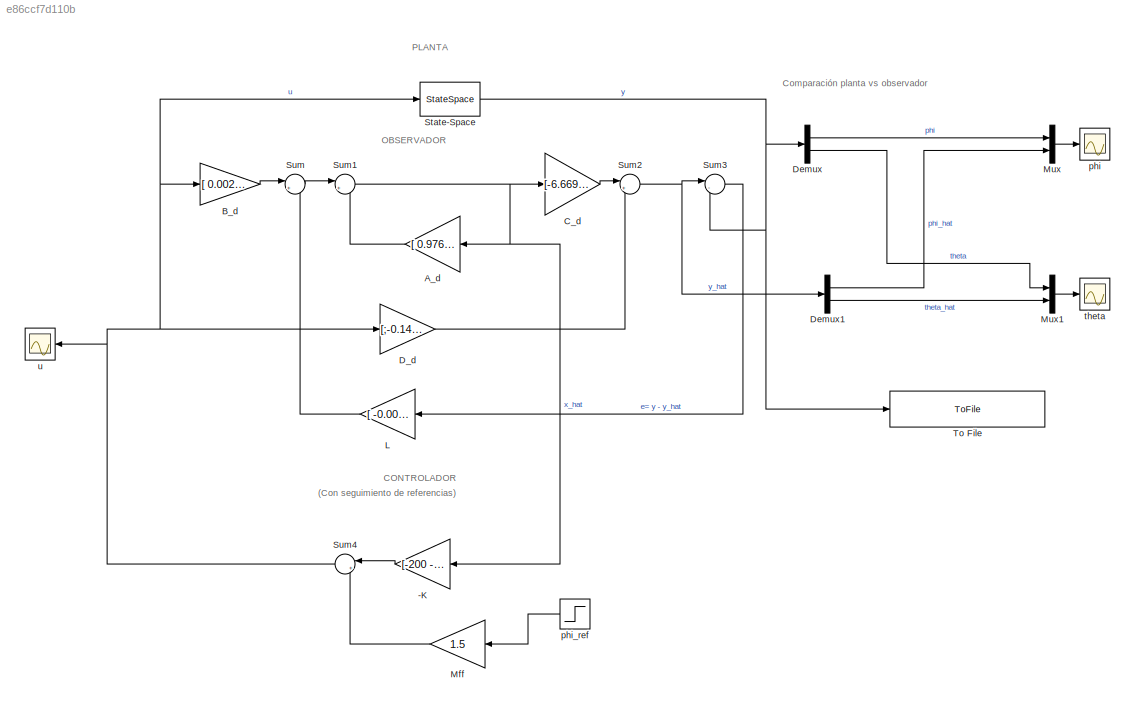
MODEL slx_e86ccf7d110b
KIND model
CONFIG AbsTol = auto
CONFIG EnableMultiTasking = off
CONFIG FixedStep = 0.02
CONFIG MaxStep = auto
CONFIG MinStep = auto
CONFIG RelTol = 1e-3
CONFIG SampleTimeConstraint = Unconstrained
CONFIG SolverName = ode1
CONFIG StartTime = 0.0
CONFIG StopTime = 10.08
BLOCK [Gain] -K
  Gain = [-200 -90 -12 -6]
  Multiplication = Matrix(K*u)
  NameLocation = top
BLOCK [Gain] A_d
  Gain = [ 0.9769     -0.152  -0.001215   -0.02181;   0.1523     0.9838   -0.02593   0.008431;   -0.02706   -0.05485        0.8    -0.0522;   0.004625    0.03261     0.3389     0.9926]
  Multiplication = Matrix(K*u)
  NameLocation = top
BLOCK [Gain] B_d
  Gain = [ 0.002765\n; -0.00137\n; 0.0122; -0.002472\n]
BLOCK [Gain] C_d
  Gain = [-6.669  -4.565  -19.02   6.812; -341.3   53.95  -2.577   4.176]
  Multiplication = Matrix(K*u)
BLOCK [Gain] D_d
  Gain = [;-0.1494\n;-0.5163]
  Multiplication = Matrix(K*u)
BLOCK [Demux] Demux
  Outputs = 2
  Ports = [1, 2]
BLOCK [Demux] Demux1
  Outputs = 2
  Ports = [1, 2]
BLOCK [Gain] L
  Gain = [ -0.0036  -0.0027;\n      -0.0412   0.0159;\n       0.0391  -0.0049;\n       0.3137  -0.0055 ]
  Multiplication = Matrix(K*u)
  NameLocation = top
BLOCK [Gain] Mff
  Gain = 1.5
  Multiplication = Matrix(K*u)
  NameLocation = top
BLOCK [Mux] Mux
  DisplayOption = bar
  Inputs = 2
  Ports = [2, 1]
BLOCK [Mux] Mux1
  DisplayOption = bar
  Inputs = 2
  Ports = [2, 1]
BLOCK [StateSpace] State-Space
  A = [  -0.5739    -7.69  0.02236   -1.068;    7.703  -0.2749   -1.527   0.4686;  -1.268   -3.108   -10.61   -2.898\n;    0.323    2.188    18.84   0.1148]
  B = [0.1323;  -0.06944;  0.6708;   -0.23731]
  C = [-6.619   -5.83  -22.39   6.203;  -347.5   27.68  -2.737  0.2003]
  D = [0; 0]
  InitialCondition = 0
  ParameterTunability = Unconstrained
  Ports = [1, 1]
BLOCK [Sum] Sum
  Inputs = |++
  Ports = [2, 1]
BLOCK [Sum] Sum1
  Inputs = |++
  Ports = [2, 1]
BLOCK [Sum] Sum2
  Inputs = |++
  Ports = [2, 1]
BLOCK [Sum] Sum3
  Inputs = |-+
  Ports = [2, 1]
BLOCK [Sum] Sum4
  Inputs = |++
  NameLocation = top
  Ports = [2, 1]
BLOCK [ToFile] To File
  Filename = simulacion_realimentacion_con_ref.mat
  MatrixName = datos_realimentacion_con_ref
  Ports = [1]
  SaveFormat = Timeseries
BLOCK [Scope] phi
  Floating = off
  NumInputPorts = 1
  Ports = [1]
  ScopeSpecificationString = Simulink.scopes.TimeScopeBlockCfg('CurrentConfiguration', extmgr.ConfigurationSet(extmgr.Configuration('Core','General UI',true),extmgr.Configuration('Core','Source UI',true),extmgr.Configuration('Sources','WiredSimulink',true),extmgr.Configuration('Visuals','Time Domain',true,'SerializedDisplays',{struct('MinYLimReal','-17.779','MaxYLimReal','49.23668','YLabelReal','','MinYLimMag','0.00000','MaxY...<+1414ch>
BLOCK [Step] phi_ref
  After = 30
  NameLocation = top
  SampleTime = 0.02
  Time = 0.1
BLOCK [Scope] theta
  Floating = off
  NumInputPorts = 1
  Ports = [1]
  ScopeSpecificationString = Simulink.scopes.TimeScopeBlockCfg('CurrentConfiguration', extmgr.ConfigurationSet(extmgr.Configuration('Core','General UI',true),extmgr.Configuration('Core','Source UI',true),extmgr.Configuration('Sources','WiredSimulink',true,'DataLoggingVariableName','ScopeData1'),extmgr.Configuration('Visuals','Time Domain',true,'SerializedDisplays',{struct('MinYLimReal','-161.9652','MaxYLimReal','118.36426','Y...<+1417ch>
BLOCK [Scope] u
  Floating = off
  NameLocation = top
  NumInputPorts = 1
  Ports = [1]
  ScopeSpecificationString = Simulink.scopes.TimeScopeBlockCfg('CurrentConfiguration', extmgr.ConfigurationSet(extmgr.Configuration('Core','General UI',true),extmgr.Configuration('Core','Source UI',true),extmgr.Configuration('Sources','WiredSimulink',true,'DataLoggingVariableName','ScopeData1'),extmgr.Configuration('Visuals','Time Domain',true,'SerializedDisplays',{struct('MinYLimReal','-2.50553','MaxYLimReal','22.54981','YLa...<+1395ch>
ANNOTATION (root): (Con seguimiento de referencias)
ANNOTATION (root): CONTROLADOR
ANNOTATION (root): Comparación planta vs observador
ANNOTATION (root): OBSERVADOR
ANNOTATION (root): PLANTA
LINE -K:1 -> Sum4:1
LINE A_d:1 -> Sum1:2
LINE B_d:1 -> Sum:1
LINE C_d:1 -> Sum2:1
LINE D_d:1 -> Sum2:2
LINE Demux1:1 -> Mux:2
LINE Demux1:2 -> Mux1:2
LINE Demux:1 -> Mux:1
LINE Demux:2 -> Mux1:1
LINE L:1 -> Sum:2
LINE Mff:1 -> Sum4:2
LINE Mux1:1 -> theta:1
LINE Mux:1 -> phi:1
NET State-Space:1 -> Demux:1, Sum3:2, To File:1
NET Sum1:1 -> -K:1, A_d:1, C_d:1
NET Sum2:1 -> Demux1:1, Sum3:1
LINE Sum3:1 -> L:1
NET Sum4:1 -> B_d:1, D_d:1, State-Space:1, u:1
LINE Sum:1 -> Sum1:1
LINE phi_ref:1 -> Mff:1
note: NET lines group one-source signal fan-out (src -> all destinations, sorted); 1:1 wires keep LINE
